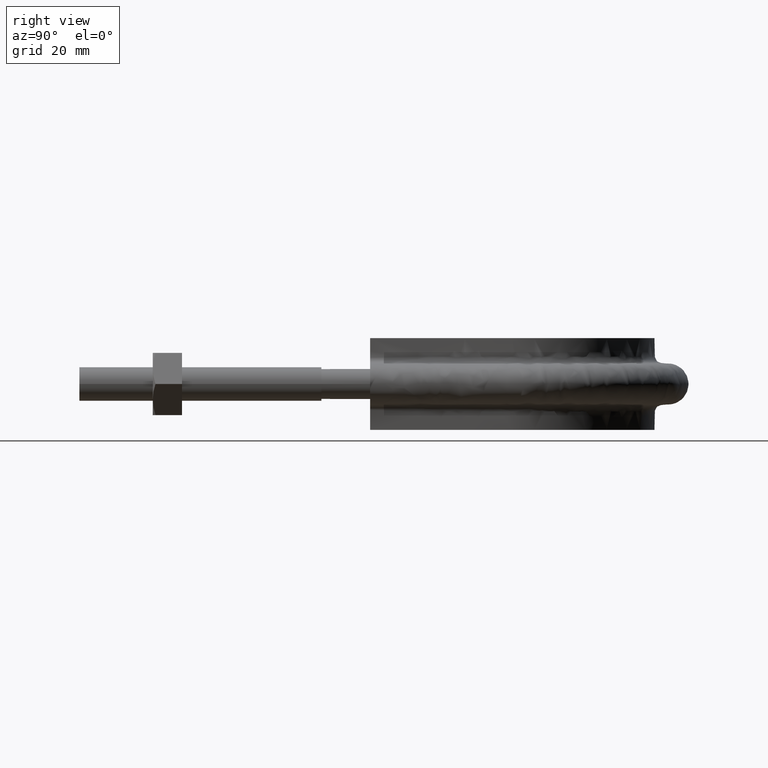
[diagram: clean part render]
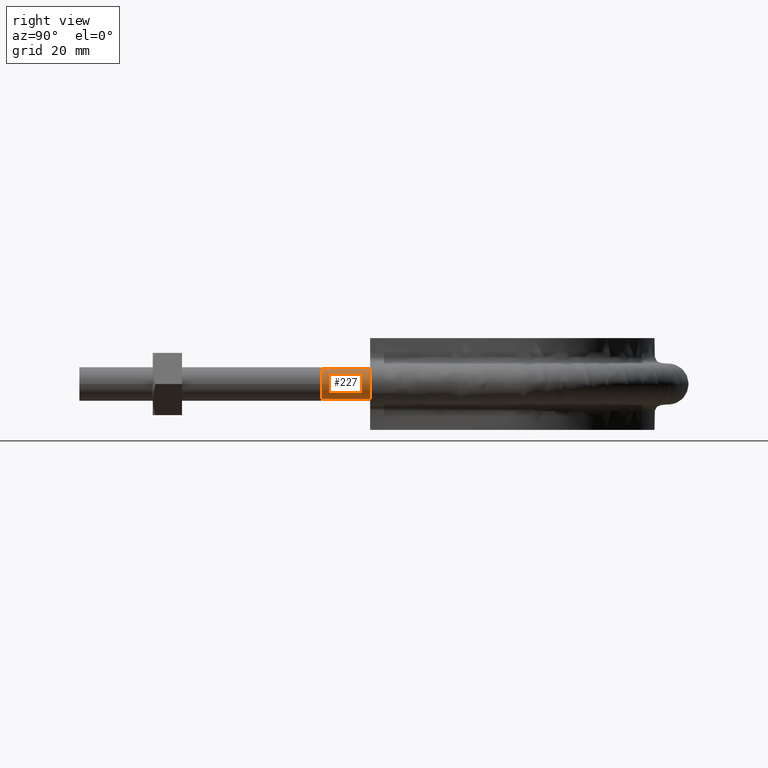
[diagram: same view with one face highlighted and labeled with its STEP entity id]
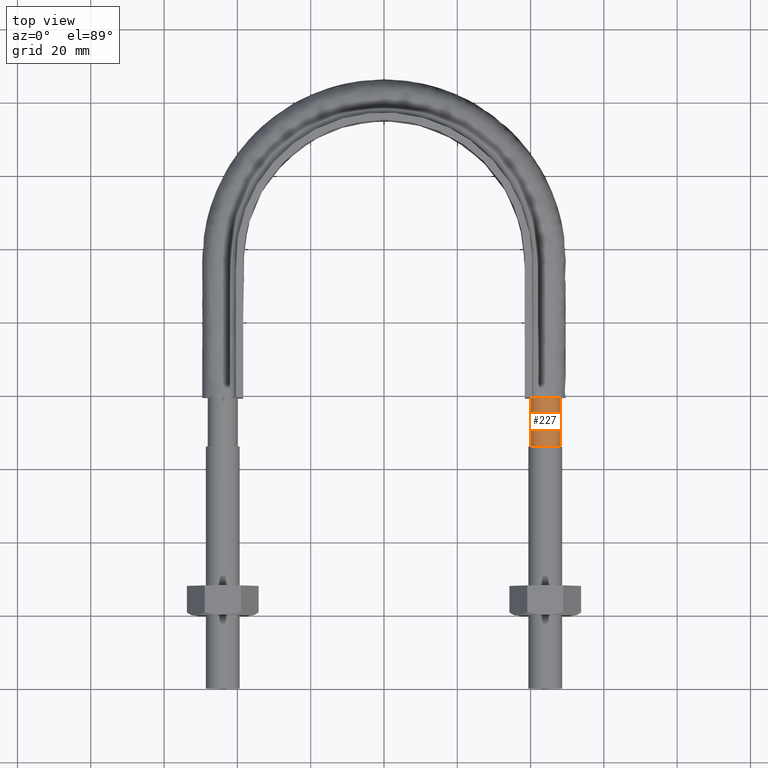
[diagram: same view with one face highlighted and labeled with its STEP entity id]
A machine part, right view. The second image highlights one B-rep face of the part: STEP entity #227.
A second angle (top view) of the same face is appended — the face is thin or edge-on in the first view.
In plain terms, the highlighted cylindrical surface (bore or boss wall) has radius 4.1 mm, axis along (0, 1, 0).
Its self-contained STEP definition (entity closure, byte-faithful):
#227 = ADVANCED_FACE( '', ( #316, #317 ), #318, .T. );
#316 = FACE_OUTER_BOUND( '', #1164, .T. );
#317 = FACE_OUTER_BOUND( '', #1165, .T. );
#318 = CYLINDRICAL_SURFACE( '', #1166, 4.10000000000000 );
#1164 = EDGE_LOOP( '', ( #1534, #1535, #1536, #1537, #1538, #1539, #1540 ) );
#1165 = EDGE_LOOP( '', ( #1541 ) );
#1166 = AXIS2_PLACEMENT_3D( '', #1542, #1543, #1544 );
#1534 = ORIENTED_EDGE( '', *, *, #2025, .T. );
#1535 = ORIENTED_EDGE( '', *, *, #2026, .T. );
#1536 = ORIENTED_EDGE( '', *, *, #2027, .T. );
#1537 = ORIENTED_EDGE( '', *, *, #2028, .T. );
#1538 = ORIENTED_EDGE( '', *, *, #2029, .T. );
#1539 = ORIENTED_EDGE( '', *, *, #2030, .T. );
#1540 = ORIENTED_EDGE( '', *, *, #2031, .T. );
#1541 = ORIENTED_EDGE( '', *, *, #2032, .T. );
#1542 = CARTESIAN_POINT( '', ( 44.0000000000000, 79.3000000000000, 2.31450600872429E-015 ) );
#1543 = DIRECTION( '', ( 2.44921270764475E-016, 1.00000000000000, 6.12303176911189E-017 ) );
#1544 = DIRECTION( '', ( 1.00000000000000, -2.44921270764475E-016, -7.49830360911069E-033 ) );
#2025 = EDGE_CURVE( '', #2195, #2196, #2197, .T. );
#2026 = EDGE_CURVE( '', #2196, #2198, #2199, .T. );
#2027 = EDGE_CURVE( '', #2198, #2200, #2201, .T. );
#2028 = EDGE_CURVE( '', #2200, #2202, #2203, .T. );
#2029 = EDGE_CURVE( '', #2202, #2204, #2205, .T. );
#2030 = EDGE_CURVE( '', #2204, #2206, #2207, .T. );
#2031 = EDGE_CURVE( '', #2206, #2195, #2208, .T. );
#2032 = EDGE_CURVE( '', #2209, #2209, #2210, .F. );
#2195 = VERTEX_POINT( '', #2662 );
#2196 = VERTEX_POINT( '', #2663 );
#2197 = CIRCLE( '', #2664, 4.10000000000000 );
#2198 = VERTEX_POINT( '', #2665 );
#2199 = CIRCLE( '', #2666, 4.10000000000000 );
#2200 = VERTEX_POINT( '', #2667 );
#2201 = CIRCLE( '', #2668, 4.10000000000000 );
#2202 = VERTEX_POINT( '', #2669 );
#2203 = CIRCLE( '', #2670, 4.10000000000000 );
#2204 = VERTEX_POINT( '', #2671 );
#2205 = CIRCLE( '', #2672, 4.10000000000000 );
#2206 = VERTEX_POINT( '', #2673 );
#2207 = CIRCLE( '', #2674, 4.10000000000000 );
#2208 = CIRCLE( '', #2675, 4.10000000000000 );
#2209 = VERTEX_POINT( '', #2676 );
#2210 = CIRCLE( '', #2677, 4.10000000000000 );
#2662 = CARTESIAN_POINT( '', ( 47.6939723583999, 79.3000000000000, 1.77892333038204 ) );
#2663 = CARTESIAN_POINT( '', ( 44.9123358292208, 79.3000000000000, 3.99720443994549 ) );
#2664 = AXIS2_PLACEMENT_3D( '', #3116, #3117, #3118 );
#2665 = CARTESIAN_POINT( '', ( 41.4436918123789, 79.3000000000000, 3.20550907811870 ) );
#2666 = AXIS2_PLACEMENT_3D( '', #3119, #3120, #3121 );
#2667 = CARTESIAN_POINT( '', ( 39.9000000000000, 79.3000000000000, -3.30788549888553E-014 ) );
#2668 = AXIS2_PLACEMENT_3D( '', #3122, #3123, #3124 );
#2669 = CARTESIAN_POINT( '', ( 41.4436918123816, 79.3000000000000, -3.20550907812083 ) );
#2670 = AXIS2_PLACEMENT_3D( '', #3125, #3126, #3127 );
#2671 = CARTESIAN_POINT( '', ( 44.9123358292214, 79.3000000000000, -3.99720443994536 ) );
#2672 = AXIS2_PLACEMENT_3D( '', #3128, #3129, #3130 );
#2673 = CARTESIAN_POINT( '', ( 47.6939723583999, 79.3000000000000, -1.77892333038203 ) );
#2674 = AXIS2_PLACEMENT_3D( '', #3131, #3132, #3133 );
#2675 = AXIS2_PLACEMENT_3D( '', #3134, #3135, #3136 );
#2676 = CARTESIAN_POINT( '', ( 48.1000000000000, 66.0000000000000, 1.50014278343241E-015 ) );
#2677 = AXIS2_PLACEMENT_3D( '', #3137, #3138, #3139 );
#3116 = CARTESIAN_POINT( '', ( 44.0000000000000, 79.3000000000000, 2.31450600872429E-015 ) );
#3117 = DIRECTION( '', ( -2.44921270764475E-016, -1.00000000000000, -6.12303176911189E-017 ) );
#3118 = DIRECTION( '', ( 1.00000000000000, -2.44921270764475E-016, -7.49830360911068E-033 ) );
#3119 = CARTESIAN_POINT( '', ( 44.0000000000000, 79.3000000000000, 2.31450600872429E-015 ) );
#3120 = DIRECTION( '', ( -2.44921270764475E-016, -1.00000000000000, -6.12303176911189E-017 ) );
#3121 = DIRECTION( '', ( 1.00000000000000, -2.44921270764475E-016, -7.49830360911068E-033 ) );
#3122 = CARTESIAN_POINT( '', ( 44.0000000000000, 79.3000000000000, 2.31450600872429E-015 ) );
#3123 = DIRECTION( '', ( -2.44921270764475E-016, -1.00000000000000, -6.12303176911189E-017 ) );
#3124 = DIRECTION( '', ( 1.00000000000000, -2.44921270764475E-016, -7.49830360911068E-033 ) );
#3125 = CARTESIAN_POINT( '', ( 44.0000000000000, 79.3000000000000, 2.31450600872429E-015 ) );
#3126 = DIRECTION( '', ( -2.44921270764475E-016, -1.00000000000000, -6.12303176911189E-017 ) );
#3127 = DIRECTION( '', ( 1.00000000000000, -2.44921270764475E-016, -7.49830360911068E-033 ) );
#3128 = CARTESIAN_POINT( '', ( 44.0000000000000, 79.3000000000000, 2.31450600872429E-015 ) );
#3129 = DIRECTION( '', ( -2.44921270764475E-016, -1.00000000000000, -6.12303176911189E-017 ) );
#3130 = DIRECTION( '', ( 1.00000000000000, -2.44921270764475E-016, -7.49830360911068E-033 ) );
#3131 = CARTESIAN_POINT( '', ( 44.0000000000000, 79.3000000000000, 2.31450600872429E-015 ) );
#3132 = DIRECTION( '', ( -2.44921270764475E-016, -1.00000000000000, -6.12303176911189E-017 ) );
#3133 = DIRECTION( '', ( 1.00000000000000, -2.44921270764475E-016, -7.49830360911068E-033 ) );
#3134 = CARTESIAN_POINT( '', ( 44.0000000000000, 79.3000000000000, 2.31450600872429E-015 ) );
#3135 = DIRECTION( '', ( -2.44921270764475E-016, -1.00000000000000, -6.12303176911189E-017 ) );
#3136 = DIRECTION( '', ( 1.00000000000000, -2.44921270764475E-016, -7.49830360911068E-033 ) );
#3137 = CARTESIAN_POINT( '', ( 44.0000000000000, 66.0000000000000, 1.50014278343241E-015 ) );
#3138 = DIRECTION( '', ( -2.44921270764475E-016, -1.00000000000000, -6.12303176911189E-017 ) );
#3139 = DIRECTION( '', ( 1.00000000000000, -2.44921270764475E-016, 0.000000000000000 ) );